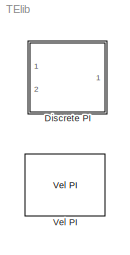
MODEL TElib
KIND library
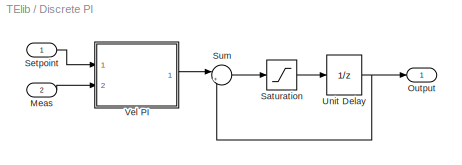
BLOCK [SubSystem] Discrete PI
  Ports = [2, 1]
  RequestExecContextInheritance = off
  SID = 1
BLOCK [Inport] Discrete PI/Meas
  IconDisplay = Port number
  Port = 2
  SID = 3
BLOCK [Outport] Discrete PI/Output
  IconDisplay = Port number
  SID = 17
BLOCK [Saturate] Discrete PI/Saturation
  InputPortMap = u0
  LowerLimit = Lo
  Ports = [1, 1]
  SID = 4
  UpperLimit = Hi
BLOCK [Inport] Discrete PI/Setpoint
  IconDisplay = Port number
  SID = 2
BLOCK [Sum] Discrete PI/Sum
  IconShape = round
  InputSameDT = off
  Inputs = |++
  OutDataTypeStr = Inherit: Inherit via internal rule
  Ports = [2, 1]
  SID = 5
BLOCK [UnitDelay] Discrete PI/Unit Delay
  InitialCondition = x0
  SID = 6
  SampleTime = Ts
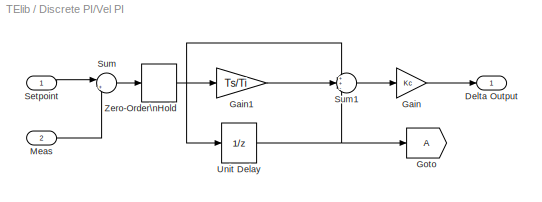
BLOCK [SubSystem] Discrete PI/Vel PI
  Ports = [2, 1]
  RequestExecContextInheritance = off
  SID = 7
BLOCK [Outport] Discrete PI/Vel PI/Delta Output
  IconDisplay = Port number
  SID = 16
BLOCK [Gain] Discrete PI/Vel PI/Gain
  Gain = Kc
  SID = 10
BLOCK [Gain] Discrete PI/Vel PI/Gain1
  Gain = Ts/Ti
  SID = 11
BLOCK [Goto] Discrete PI/Vel PI/Goto
  SID = 20
  TagVisibility = global
BLOCK [Inport] Discrete PI/Vel PI/Meas
  IconDisplay = Port number
  Port = 2
  SID = 9
BLOCK [Inport] Discrete PI/Vel PI/Setpoint
  IconDisplay = Port number
  SID = 8
BLOCK [Sum] Discrete PI/Vel PI/Sum
  IconShape = round
  InputSameDT = off
  Inputs = |+-
  OutDataTypeStr = Inherit: Inherit via internal rule
  Ports = [2, 1]
  SID = 12
BLOCK [Sum] Discrete PI/Vel PI/Sum1
  IconShape = round
  InputSameDT = off
  Inputs = ++-
  OutDataTypeStr = Inherit: Inherit via internal rule
  Ports = [3, 1]
  SID = 13
BLOCK [UnitDelay] Discrete PI/Vel PI/Unit Delay
  SID = 14
  SampleTime = Ts
BLOCK [ZeroOrderHold] Discrete PI/Vel PI/Zero-Order\nHold
  SID = 15
  SampleTime = Ts
BLOCK [Reference] Vel PI  REF=$bdroot/Discrete PI/Vel PI
  Kc = Kc
  Ports = [2, 1]
  RTWMemSecDataConstants = Inherit from model
  RTWMemSecDataInternal = Inherit from model
  RTWMemSecDataParameters = Inherit from model
  RTWMemSecFuncExecute = Inherit from model
  RTWMemSecFuncInitTerm = Inherit from model
  SID = 18
  SourceBlock = $bdroot/Discrete PI/Vel PI
  Ti = Ti
  Ts = Ts
LINE Discrete PI/Meas:1 -> Discrete PI/Vel PI:2
LINE Discrete PI/Saturation:1 -> Discrete PI/Unit Delay:1
LINE Discrete PI/Setpoint:1 -> Discrete PI/Vel PI:1
LINE Discrete PI/Sum:1 -> Discrete PI/Saturation:1
NET Discrete PI/Unit Delay:1 -> Discrete PI/Output:1, Discrete PI/Sum:2
LINE Discrete PI/Vel PI/Gain1:1 -> Discrete PI/Vel PI/Sum1:2
LINE Discrete PI/Vel PI/Gain:1 -> Discrete PI/Vel PI/Delta Output:1
LINE Discrete PI/Vel PI/Meas:1 -> Discrete PI/Vel PI/Sum:2
LINE Discrete PI/Vel PI/Setpoint:1 -> Discrete PI/Vel PI/Sum:1
LINE Discrete PI/Vel PI/Sum1:1 -> Discrete PI/Vel PI/Gain:1
LINE Discrete PI/Vel PI/Sum:1 -> Discrete PI/Vel PI/Zero-Order\nHold:1
NET Discrete PI/Vel PI/Unit Delay:1 -> Discrete PI/Vel PI/Goto:1, Discrete PI/Vel PI/Sum1:3
NET Discrete PI/Vel PI/Zero-Order\nHold:1 -> Discrete PI/Vel PI/Gain1:1, Discrete PI/Vel PI/Sum1:1, Discrete PI/Vel PI/Unit Delay:1
LINE Discrete PI/Vel PI:1 -> Discrete PI/Sum:1
note: NET lines group one-source signal fan-out (src -> all destinations, sorted); 1:1 wires keep LINE
